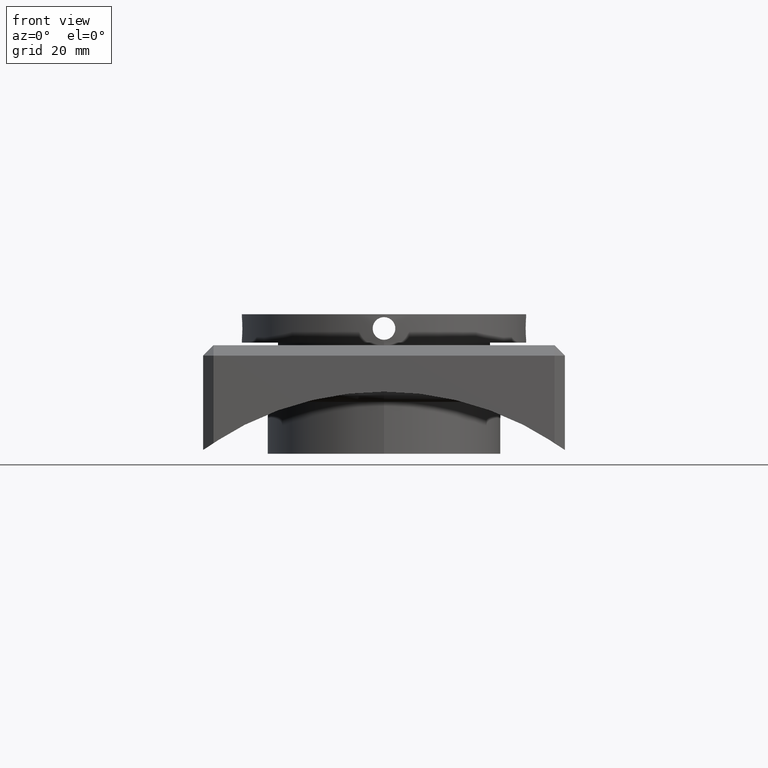
[diagram: clean part render]
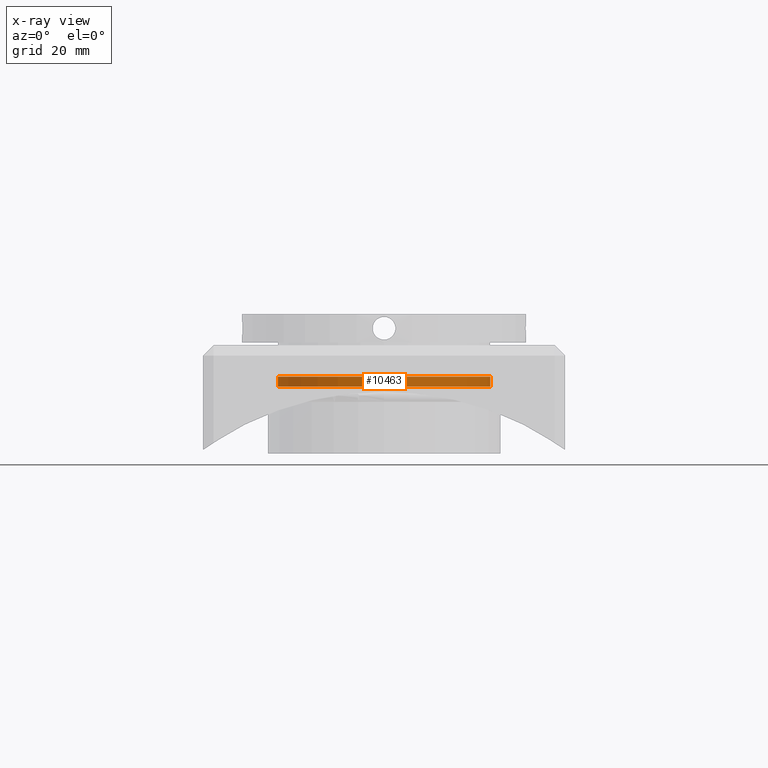
[diagram: x-ray — body ghosted, one internal face saturated and labeled with its STEP entity id]
A machine part, front view, then the same camera in x-ray: the body is ghosted and one INTERNAL B-rep face — a face not visible from any outside direction — is saturated and labeled: STEP entity #10463.
In plain terms, the highlighted cylindrical surface (partial cylindrical patch) has radius 20.55 mm, axis along (-0, -0, -1).
Its self-contained STEP definition (entity closure, byte-faithful):
#611 = CARTESIAN_POINT ( 'NONE',  ( -20.55000000000000426, -8.266365894244639264E-17, 1.399999999999998135 ) ) ;
#917 = ORIENTED_EDGE ( 'NONE', *, *, #7326, .F. ) ;
#2456 = DIRECTION ( 'NONE',  ( -0.000000000000000000, -0.000000000000000000, -1.000000000000000000 ) ) ;
#2711 = CARTESIAN_POINT ( 'NONE',  ( 20.55000000000000426, 2.433985513305365014E-15, 1.399999999999998135 ) ) ;
#3056 = VECTOR ( 'NONE', #17168, 1000.000000000000000 ) ;
#3872 = CARTESIAN_POINT ( 'NONE',  ( 0.000000000000000000, -8.266365894244639264E-17, -0.5000000000000019984 ) ) ;
#4628 = DIRECTION ( 'NONE',  ( -0.000000000000000000, -0.000000000000000000, -1.000000000000000000 ) ) ;
#6436 = DIRECTION ( 'NONE',  ( 1.000000000000000000, 0.000000000000000000, 0.000000000000000000 ) ) ;
#6760 = ORIENTED_EDGE ( 'NONE', *, *, #10668, .T. ) ;
#7326 = EDGE_CURVE ( 'NONE', #9494, #17458, #17067, .T. ) ;
#7721 = AXIS2_PLACEMENT_3D ( 'NONE', #3872, #2456, #12465 ) ;
#8357 = ORIENTED_EDGE ( 'NONE', *, *, #14842, .T. ) ;
#9494 = VERTEX_POINT ( 'NONE', #9671 ) ;
#9671 = CARTESIAN_POINT ( 'NONE',  ( 20.55000000000000426, 2.433985513305365014E-15, 1.399999999999998135 ) ) ;
#9734 = AXIS2_PLACEMENT_3D ( 'NONE', #17360, #11655, #13165 ) ;
#9813 = CARTESIAN_POINT ( 'NONE',  ( 20.55000000000000426, 2.433985513305365014E-15, -0.5000000000000019984 ) ) ;
#9988 = LINE ( 'NONE', #2711, #3056 ) ;
#10127 = VECTOR ( 'NONE', #16371, 1000.000000000000000 ) ;
#10191 = CARTESIAN_POINT ( 'NONE',  ( -20.55000000000000426, -8.266365894244639264E-17, -0.5000000000000019984 ) ) ;
#10463 = ADVANCED_FACE ( 'NONE', ( #13430 ), #16342, .F. ) ;
#10668 = EDGE_CURVE ( 'NONE', #13890, #14995, #13888, .T. ) ;
#11492 = LINE ( 'NONE', #611, #10127 ) ;
#11655 = DIRECTION ( 'NONE',  ( -0.000000000000000000, -0.000000000000000000, -1.000000000000000000 ) ) ;
#11696 = CARTESIAN_POINT ( 'NONE',  ( -20.55000000000000426, -8.266365894244639264E-17, 1.399999999999998135 ) ) ;
#12465 = DIRECTION ( 'NONE',  ( 1.000000000000000000, 0.000000000000000000, 0.000000000000000000 ) ) ;
#13165 = DIRECTION ( 'NONE',  ( -1.000000000000000000, 0.000000000000000000, 0.000000000000000000 ) ) ;
#13225 = CARTESIAN_POINT ( 'NONE',  ( 0.000000000000000000, -8.266365894244639264E-17, 1.399999999999998135 ) ) ;
#13430 = FACE_OUTER_BOUND ( 'NONE', #15136, .T. ) ;
#13547 = ORIENTED_EDGE ( 'NONE', *, *, #18544, .F. ) ;
#13888 = CIRCLE ( 'NONE', #7721, 20.55000000000000426 ) ;
#13890 = VERTEX_POINT ( 'NONE', #9813 ) ;
#14842 = EDGE_CURVE ( 'NONE', #9494, #13890, #9988, .T. ) ;
#14995 = VERTEX_POINT ( 'NONE', #10191 ) ;
#15136 = EDGE_LOOP ( 'NONE', ( #917, #8357, #6760, #13547 ) ) ;
#16342 = CYLINDRICAL_SURFACE ( 'NONE', #9734, 20.55000000000000426 ) ;
#16371 = DIRECTION ( 'NONE',  ( -0.000000000000000000, -0.000000000000000000, -1.000000000000000000 ) ) ;
#17067 = CIRCLE ( 'NONE', #17302, 20.55000000000000426 ) ;
#17168 = DIRECTION ( 'NONE',  ( -0.000000000000000000, -0.000000000000000000, -1.000000000000000000 ) ) ;
#17302 = AXIS2_PLACEMENT_3D ( 'NONE', #13225, #4628, #6436 ) ;
#17360 = CARTESIAN_POINT ( 'NONE',  ( 0.000000000000000000, -8.266365894244639264E-17, 1.399999999999998135 ) ) ;
#17458 = VERTEX_POINT ( 'NONE', #11696 ) ;
#18544 = EDGE_CURVE ( 'NONE', #17458, #14995, #11492, .T. ) ;